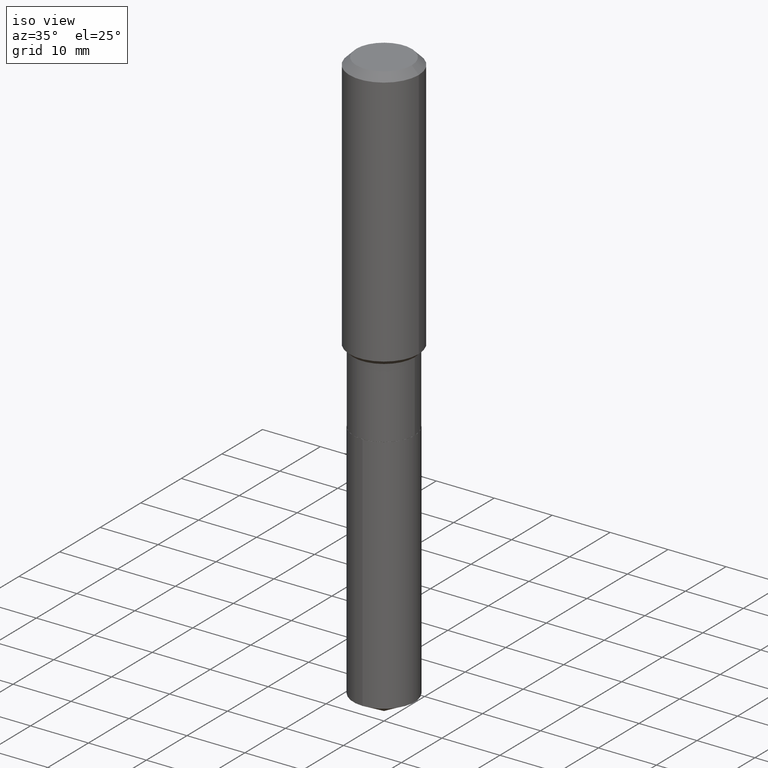
[diagram: clean part render]
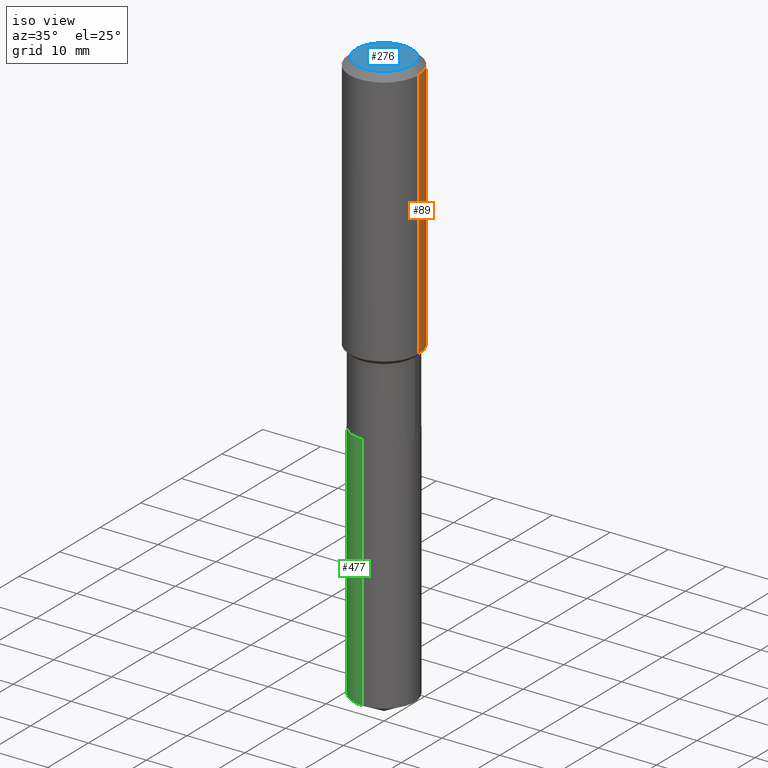
[diagram: same view with three faces highlighted in distinct colors, each labeled with its STEP entity id]
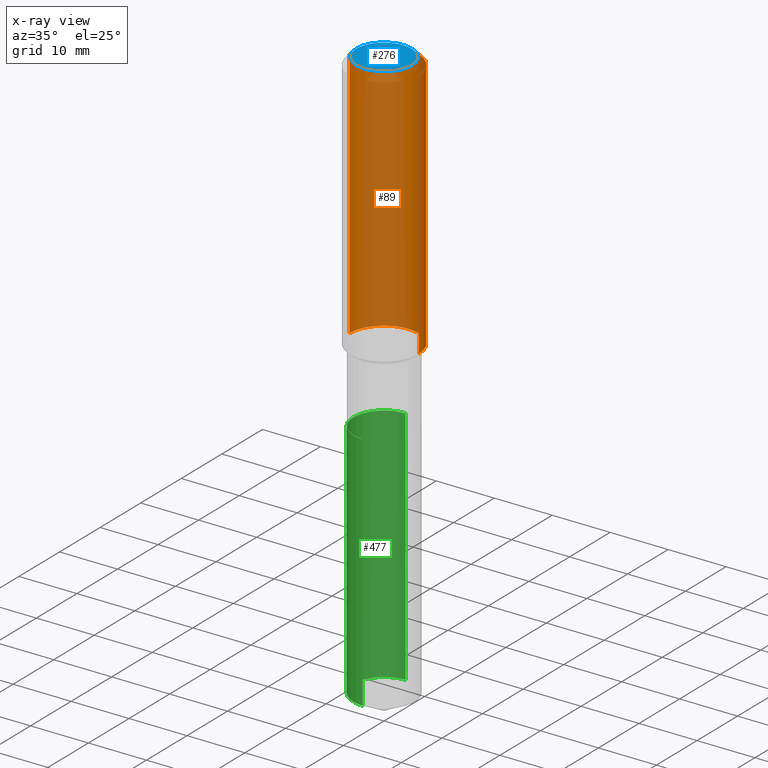
[diagram: x-ray of the same camera — body ghosted, the three highlighted faces saturated]
A machine part, iso view with three faces highlighted in distinct colors.
The next image is the same camera in x-ray (body ghosted, the three faces saturated) — at least one of them is partly hidden behind the body in this view.
Their STEP definitions:

[orange] entity #89 — the highlighted cylindrical surface (partial cylindrical patch) has radius 5.9995 mm, axis along (-0, 0, 1).
#2 = CARTESIAN_POINT ( 'NONE',  ( 0.000000000000000000, 0.000000000000000000, 0.000000000000000000 ) ) ;
#5 = VECTOR ( 'NONE', #460, 39.37007874015748143 ) ;
#6 = DIRECTION ( 'NONE',  ( 1.000000000000000000, -6.982962677686266711E-15, 4.876176775795935793E-29 ) ) ;
#11 = EDGE_LOOP ( 'NONE', ( #244, #84, #227, #386 ) ) ;
#30 = DIRECTION ( 'NONE',  ( -2.445468806185136597E-29, 3.491481338843145583E-15, 1.000000000000000000 ) ) ;
#66 = DIRECTION ( 'NONE',  ( 1.000000000000000000, -6.982962677686266711E-15, 0.000000000000000000 ) ) ;
#78 = DIRECTION ( 'NONE',  ( -2.445468806185136597E-29, 3.491481338843145583E-15, 1.000000000000000000 ) ) ;
#82 = AXIS2_PLACEMENT_3D ( 'NONE', #2, #116, #6 ) ;
#84 = ORIENTED_EDGE ( 'NONE', *, *, #486, .T. ) ;
#89 = ADVANCED_FACE ( 'NONE', ( #334 ), #140, .T. ) ;
#104 = CIRCLE ( 'NONE', #157, 0.2361999999999999933 ) ;
#105 = CARTESIAN_POINT ( 'NONE',  ( -0.2361999999999999933, -1.476932286640498674E-15, -0.04724000000000028177 ) ) ;
#116 = DIRECTION ( 'NONE',  ( -2.445468806185136597E-29, 3.491481338843145583E-15, 1.000000000000000000 ) ) ;
#140 = CYLINDRICAL_SURFACE ( 'NONE', #82, 0.2362000000000001043 ) ;
#156 = CIRCLE ( 'NONE', #230, 0.2362000000000002153 ) ;
#157 = AXIS2_PLACEMENT_3D ( 'NONE', #260, #78, #294 ) ;
#164 = VERTEX_POINT ( 'NONE', #300 ) ;
#170 = DIRECTION ( 'NONE',  ( -2.445468806185136877E-29, 3.491481338843145188E-15, 1.000000000000000000 ) ) ;
#227 = ORIENTED_EDGE ( 'NONE', *, *, #346, .F. ) ;
#230 = AXIS2_PLACEMENT_3D ( 'NONE', #407, #30, #66 ) ;
#244 = ORIENTED_EDGE ( 'NONE', *, *, #280, .T. ) ;
#260 = CARTESIAN_POINT ( 'NONE',  ( 1.155239464041865506E-30, -1.649375784469511859E-16, -0.04724000000000028177 ) ) ;
#275 = VERTEX_POINT ( 'NONE', #105 ) ;
#280 = EDGE_CURVE ( 'NONE', #164, #428, #156, .T. ) ;
#291 = CARTESIAN_POINT ( 'NONE',  ( 0.2361999999999999933, -1.814313362916447440E-15, -0.04724000000000028177 ) ) ;
#294 = DIRECTION ( 'NONE',  ( 1.000000000000000000, -6.982962677686266711E-15, 0.000000000000000000 ) ) ;
#300 = CARTESIAN_POINT ( 'NONE',  ( 0.2362000000000002153, -7.794906663034259691E-15, -1.760149999999999881 ) ) ;
#303 = CARTESIAN_POINT ( 'NONE',  ( 0.2362000000000001043, -1.649375784469496920E-15, 1.151752954443000508E-29 ) ) ;
#311 = CARTESIAN_POINT ( 'NONE',  ( -0.2362000000000002153, -4.467228936699403616E-15, -1.760149999999999881 ) ) ;
#328 = VECTOR ( 'NONE', #170, 39.37007874015748143 ) ;
#334 = FACE_OUTER_BOUND ( 'NONE', #11, .T. ) ;
#344 = VERTEX_POINT ( 'NONE', #291 ) ;
#346 = EDGE_CURVE ( 'NONE', #344, #275, #104, .T. ) ;
#358 = CARTESIAN_POINT ( 'NONE',  ( -0.2362000000000001043, 1.678301941865357380E-15, -1.161852468318209317E-29 ) ) ;
#362 = EDGE_CURVE ( 'NONE', #164, #344, #373, .T. ) ;
#373 = LINE ( 'NONE', #303, #5 ) ;
#386 = ORIENTED_EDGE ( 'NONE', *, *, #362, .F. ) ;
#407 = CARTESIAN_POINT ( 'NONE',  ( 4.304391919206767645E-29, -6.145530878564761588E-15, -1.760149999999999881 ) ) ;
#428 = VERTEX_POINT ( 'NONE', #311 ) ;
#436 = LINE ( 'NONE', #358, #328 ) ;
#460 = DIRECTION ( 'NONE',  ( -2.445468806185136877E-29, 3.491481338843145188E-15, 1.000000000000000000 ) ) ;
#486 = EDGE_CURVE ( 'NONE', #428, #275, #436, .T. ) ;

[blue] entity #276 — the highlighted planar face has unit normal (0, -0, -1).
#4 = CIRCLE ( 'NONE', #62, 0.1889600000000000168 ) ;
#58 = CIRCLE ( 'NONE', #304, 0.1889600000000000168 ) ;
#62 = AXIS2_PLACEMENT_3D ( 'NONE', #453, #138, #414 ) ;
#92 = EDGE_LOOP ( 'NONE', ( #313, #461 ) ) ;
#127 = CARTESIAN_POINT ( 'NONE',  ( 0.1889600000000000168, -1.540873453589747738E-15, 3.855188123725863225E-18 ) ) ;
#138 = DIRECTION ( 'NONE',  ( -2.445468806185136597E-29, 3.491481338843145583E-15, 1.000000000000000000 ) ) ;
#144 = DIRECTION ( 'NONE',  ( 2.438088387897960049E-29, -3.491481338843145188E-15, -1.000000000000000000 ) ) ;
#179 = CARTESIAN_POINT ( 'NONE',  ( -9.427742298522546243E-47, 1.346031739168365344E-32, 3.855188123715862256E-18 ) ) ;
#237 = EDGE_CURVE ( 'NONE', #488, #239, #58, .T. ) ;
#239 = VERTEX_POINT ( 'NONE', #281 ) ;
#245 = FACE_OUTER_BOUND ( 'NONE', #92, .T. ) ;
#276 = ADVANCED_FACE ( 'NONE', ( #245 ), #331, .F. ) ;
#277 = DIRECTION ( 'NONE',  ( -2.445468806185136597E-29, 3.491481338843145583E-15, 1.000000000000000000 ) ) ;
#281 = CARTESIAN_POINT ( 'NONE',  ( -0.1889600000000000168, 1.401969416799070942E-15, 3.855188123706346622E-18 ) ) ;
#285 = DIRECTION ( 'NONE',  ( -1.000000000000000000, 6.982962677686265922E-15, -4.876176775795935793E-29 ) ) ;
#304 = AXIS2_PLACEMENT_3D ( 'NONE', #179, #277, #371 ) ;
#312 = EDGE_CURVE ( 'NONE', #239, #488, #4, .T. ) ;
#313 = ORIENTED_EDGE ( 'NONE', *, *, #312, .T. ) ;
#331 = PLANE ( 'NONE',  #454 ) ;
#371 = DIRECTION ( 'NONE',  ( 1.000000000000000000, -6.982962677686266711E-15, 4.876185090822587894E-29 ) ) ;
#414 = DIRECTION ( 'NONE',  ( 1.000000000000000000, -6.982962677686266711E-15, 4.876185090822587894E-29 ) ) ;
#453 = CARTESIAN_POINT ( 'NONE',  ( -9.427742298522546243E-47, 1.346031739168365344E-32, 3.855188123715862256E-18 ) ) ;
#454 = AXIS2_PLACEMENT_3D ( 'NONE', #490, #144, #285 ) ;
#461 = ORIENTED_EDGE ( 'NONE', *, *, #237, .T. ) ;
#488 = VERTEX_POINT ( 'NONE', #127 ) ;
#490 = CARTESIAN_POINT ( 'NONE',  ( -4.713871149261273121E-47, 6.730158695841826722E-33, 1.927594061857931128E-18 ) ) ;

[green] entity #477 — the highlighted cylindrical surface (partial cylindrical patch) has radius 5.2997 mm, axis along (-0, 0, 1).
#10 = ORIENTED_EDGE ( 'NONE', *, *, #470, .F. ) ;
#47 = CARTESIAN_POINT ( 'NONE',  ( 5.545345064905416332E-29, -7.917283083960716952E-15, -2.267600000000000282 ) ) ;
#52 = CARTESIAN_POINT ( 'NONE',  ( 5.545345064905416332E-29, -7.917283083960716952E-15, -2.267600000000000282 ) ) ;
#53 = VERTEX_POINT ( 'NONE', #278 ) ;
#72 = DIRECTION ( 'NONE',  ( -2.445557312762825929E-29, 3.491354592386412889E-15, 1.000000000000000000 ) ) ;
#74 = CARTESIAN_POINT ( 'NONE',  ( -1.456995162699183723E-15, -0.2086500000000079402, -2.267599999999999394 ) ) ;
#87 = DIRECTION ( 'NONE',  ( -2.445557312762825929E-29, 3.491354592386412889E-15, 1.000000000000000000 ) ) ;
#103 = VERTEX_POINT ( 'NONE', #416 ) ;
#107 = LINE ( 'NONE', #74, #339 ) ;
#143 = CARTESIAN_POINT ( 'NONE',  ( 1.482547418163544505E-15, 0.2086499999999864019, -3.904758827083833594 ) ) ;
#150 = VERTEX_POINT ( 'NONE', #143 ) ;
#169 = DIRECTION ( 'NONE',  ( -6.982962677686265922E-15, -1.000000000000000000, 2.618593811324479633E-15 ) ) ;
#190 = EDGE_LOOP ( 'NONE', ( #10, #425, #431, #434 ) ) ;
#219 = CARTESIAN_POINT ( 'NONE',  ( 9.549110806634494996E-29, -1.363318507336581100E-14, -3.904758827083833150 ) ) ;
#225 = AXIS2_PLACEMENT_3D ( 'NONE', #219, #87, #169 ) ;
#233 = VERTEX_POINT ( 'NONE', #484 ) ;
#246 = DIRECTION ( 'NONE',  ( -2.445557312762825929E-29, 3.491354592386412889E-15, 1.000000000000000000 ) ) ;
#264 = CIRCLE ( 'NONE', #225, 0.2086500000000000021 ) ;
#274 = DIRECTION ( 'NONE',  ( -2.445557312762825929E-29, 3.491354592386412889E-15, 1.000000000000000000 ) ) ;
#278 = CARTESIAN_POINT ( 'NONE',  ( -1.456995162699143886E-15, -0.2086500000000136301, -3.904758827083832706 ) ) ;
#323 = EDGE_CURVE ( 'NONE', #53, #103, #107, .T. ) ;
#339 = VECTOR ( 'NONE', #246, 39.37007874015748143 ) ;
#351 = VECTOR ( 'NONE', #464, 39.37007874015748143 ) ;
#369 = AXIS2_PLACEMENT_3D ( 'NONE', #47, #72, #455 ) ;
#379 = EDGE_CURVE ( 'NONE', #233, #103, #445, .T. ) ;
#388 = DIRECTION ( 'NONE',  ( -6.982962677686265922E-15, -1.000000000000000000, 3.927890716986719253E-15 ) ) ;
#395 = EDGE_CURVE ( 'NONE', #150, #53, #264, .T. ) ;
#399 = LINE ( 'NONE', #472, #351 ) ;
#416 = CARTESIAN_POINT ( 'NONE',  ( -1.456995162699183723E-15, -0.2086500000000079402, -2.267599999999999394 ) ) ;
#425 = ORIENTED_EDGE ( 'NONE', *, *, #395, .T. ) ;
#427 = CYLINDRICAL_SURFACE ( 'NONE', #441, 0.2086500000000000021 ) ;
#431 = ORIENTED_EDGE ( 'NONE', *, *, #323, .T. ) ;
#434 = ORIENTED_EDGE ( 'NONE', *, *, #379, .F. ) ;
#441 = AXIS2_PLACEMENT_3D ( 'NONE', #52, #274, #388 ) ;
#445 = CIRCLE ( 'NONE', #369, 0.2086500000000000021 ) ;
#455 = DIRECTION ( 'NONE',  ( -6.982962677686265922E-15, -1.000000000000000000, 3.927890716986719253E-15 ) ) ;
#464 = DIRECTION ( 'NONE',  ( -2.445557312762825929E-29, 3.491354592386412889E-15, 1.000000000000000000 ) ) ;
#468 = FACE_OUTER_BOUND ( 'NONE', #190, .T. ) ;
#470 = EDGE_CURVE ( 'NONE', #150, #233, #399, .T. ) ;
#472 = CARTESIAN_POINT ( 'NONE',  ( 1.482547418163504470E-15, 0.2086499999999920918, -2.267600000000001170 ) ) ;
#477 = ADVANCED_FACE ( 'NONE', ( #468 ), #427, .T. ) ;
#484 = CARTESIAN_POINT ( 'NONE',  ( 1.482547418163544702E-15, 0.2086499999999920918, -2.267600000000001170 ) ) ;